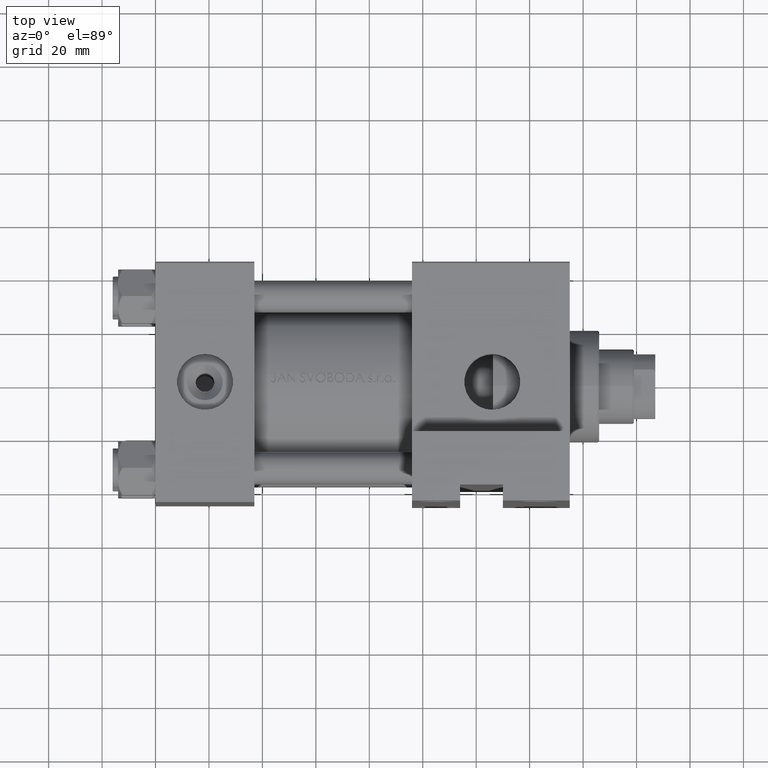
[diagram: clean part render]
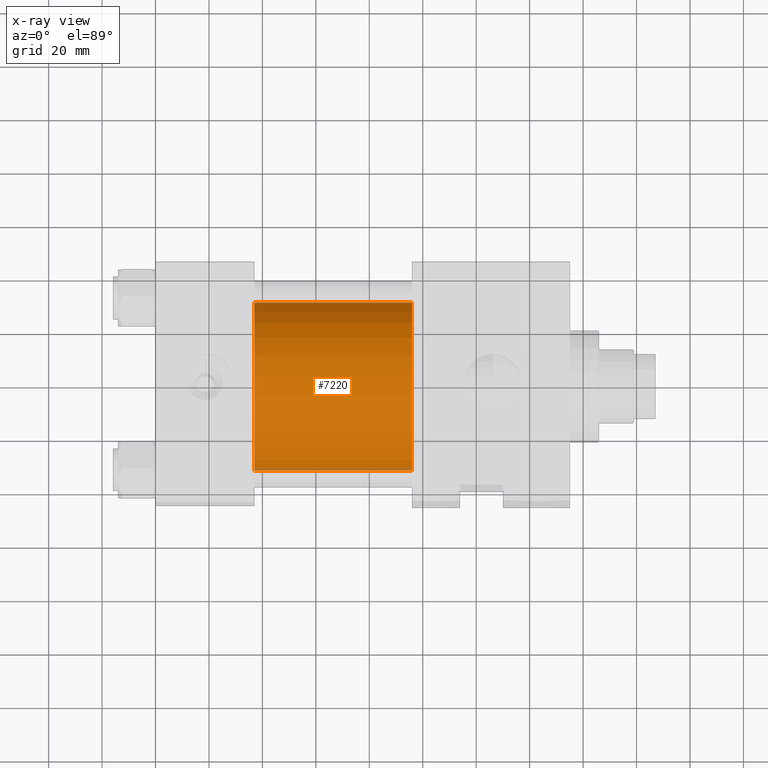
[diagram: x-ray — body ghosted, one internal face saturated and labeled with its STEP entity id]
A machine part, top view, then the same camera in x-ray: the body is ghosted and one INTERNAL B-rep face — a face not visible from any outside direction — is saturated and labeled: STEP entity #7220.
In plain terms, the highlighted cylindrical surface (partial cylindrical patch) has radius 31.5 mm, axis along (-1, -0, 0).
Its self-contained STEP definition (entity closure, byte-faithful):
#2732 = AXIS2_PLACEMENT_3D ( 'NONE', #43848, #10134, #47604 ) ;
#7220 = ADVANCED_FACE ( 'NONE', ( #48095 ), #25208, .F. ) ;
#9874 = CARTESIAN_POINT ( 'NONE',  ( 96.00000000000000000, 0.000000000000000000, 30.49999999999999289 ) ) ;
#10134 = DIRECTION ( 'NONE',  ( -1.000000000000000000, -0.000000000000000000, -0.000000000000000000 ) ) ;
#10541 = ORIENTED_EDGE ( 'NONE', *, *, #28636, .F. ) ;
#13360 = DIRECTION ( 'NONE',  ( 1.000000000000000000, 0.000000000000000000, 0.000000000000000000 ) ) ;
#14227 = ORIENTED_EDGE ( 'NONE', *, *, #29209, .T. ) ;
#14881 = DIRECTION ( 'NONE',  ( 1.000000000000000000, 0.000000000000000000, 0.000000000000000000 ) ) ;
#19369 = CARTESIAN_POINT ( 'NONE',  ( 96.00000000000000000, 3.857637417314162689E-15, -32.50000000000000711 ) ) ;
#21134 = DIRECTION ( 'NONE',  ( 0.000000000000000000, 0.000000000000000000, -1.000000000000000000 ) ) ;
#21265 = CARTESIAN_POINT ( 'NONE',  ( 37.00000000000000000, 3.857637417314162689E-15, -32.50000000000000711 ) ) ;
#21304 = EDGE_CURVE ( 'NONE', #34943, #31301, #41790, .T. ) ;
#22725 = EDGE_CURVE ( 'NONE', #32280, #45063, #44419, .T. ) ;
#25208 = CYLINDRICAL_SURFACE ( 'NONE', #2732, 31.50000000000000000 ) ;
#25314 = DIRECTION ( 'NONE',  ( -1.000000000000000000, -0.000000000000000000, -0.000000000000000000 ) ) ;
#25563 = EDGE_LOOP ( 'NONE', ( #14227, #42093, #10541, #32119 ) ) ;
#26132 = AXIS2_PLACEMENT_3D ( 'NONE', #49338, #14881, #34252 ) ;
#28636 = EDGE_CURVE ( 'NONE', #45063, #31301, #34177, .T. ) ;
#29209 = EDGE_CURVE ( 'NONE', #32280, #34943, #49473, .T. ) ;
#29334 = CARTESIAN_POINT ( 'NONE',  ( 96.00000000000000000, 0.000000000000000000, 30.49999999999999289 ) ) ;
#29395 = AXIS2_PLACEMENT_3D ( 'NONE', #47826, #13360, #21134 ) ;
#31301 = VERTEX_POINT ( 'NONE', #21265 ) ;
#32119 = ORIENTED_EDGE ( 'NONE', *, *, #22725, .F. ) ;
#32280 = VERTEX_POINT ( 'NONE', #9874 ) ;
#33959 = CARTESIAN_POINT ( 'NONE',  ( 96.00000000000000000, 3.857637417314162689E-15, -32.50000000000000711 ) ) ;
#34177 = CIRCLE ( 'NONE', #26132, 31.50000000000000000 ) ;
#34252 = DIRECTION ( 'NONE',  ( 0.000000000000000000, 0.000000000000000000, -1.000000000000000000 ) ) ;
#34943 = VERTEX_POINT ( 'NONE', #33959 ) ;
#37762 = DIRECTION ( 'NONE',  ( -1.000000000000000000, -0.000000000000000000, -0.000000000000000000 ) ) ;
#41136 = CARTESIAN_POINT ( 'NONE',  ( 37.00000000000000000, 0.000000000000000000, 30.49999999999999289 ) ) ;
#41790 = LINE ( 'NONE', #19369, #45158 ) ;
#42093 = ORIENTED_EDGE ( 'NONE', *, *, #21304, .T. ) ;
#43848 = CARTESIAN_POINT ( 'NONE',  ( 96.00000000000000000, 0.000000000000000000, -1.000000000000007772 ) ) ;
#44419 = LINE ( 'NONE', #29334, #48420 ) ;
#45063 = VERTEX_POINT ( 'NONE', #41136 ) ;
#45158 = VECTOR ( 'NONE', #37762, 1000.000000000000000 ) ;
#47604 = DIRECTION ( 'NONE',  ( 0.000000000000000000, 0.000000000000000000, 1.000000000000000000 ) ) ;
#47826 = CARTESIAN_POINT ( 'NONE',  ( 96.00000000000000000, 0.000000000000000000, -1.000000000000007772 ) ) ;
#48095 = FACE_OUTER_BOUND ( 'NONE', #25563, .T. ) ;
#48420 = VECTOR ( 'NONE', #25314, 1000.000000000000000 ) ;
#49338 = CARTESIAN_POINT ( 'NONE',  ( 37.00000000000000000, 0.000000000000000000, -1.000000000000007772 ) ) ;
#49473 = CIRCLE ( 'NONE', #29395, 31.50000000000000000 ) ;